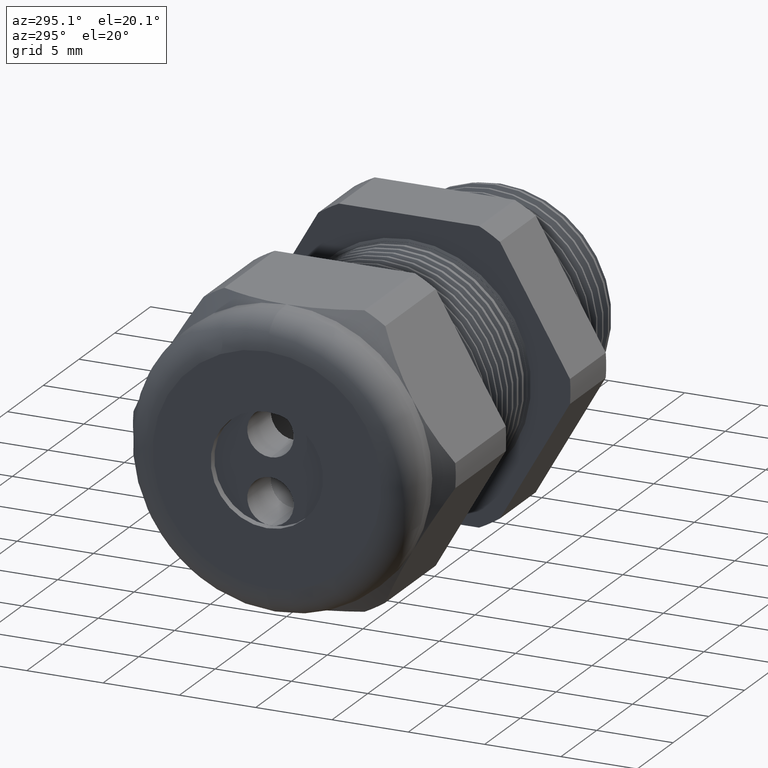
[diagram: clean part render]
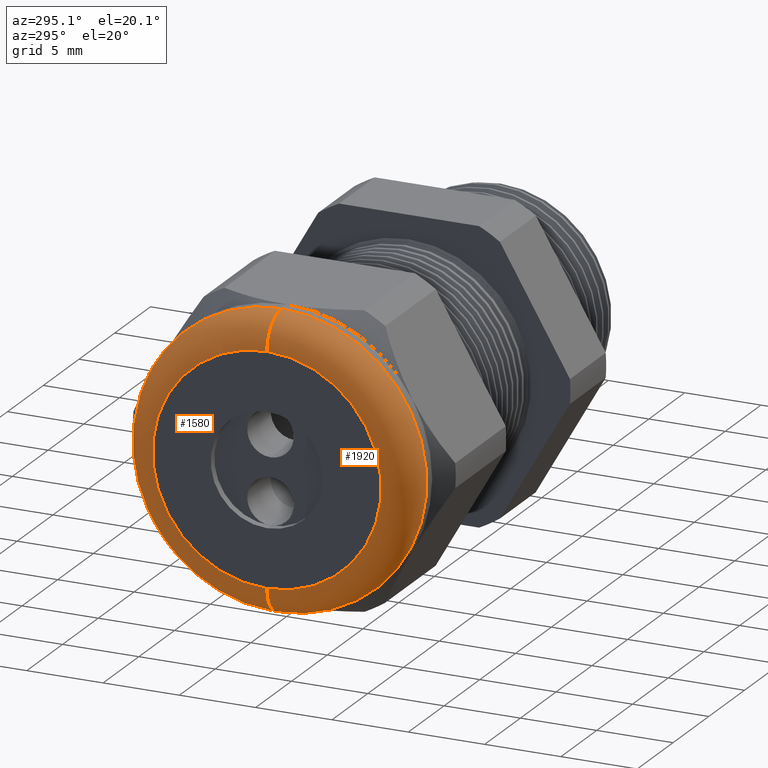
[diagram: same view with one multi-face feature highlighted, each face labeled with its STEP entity id]
A machine part, auxiliary view. The highlighted faces form ONE feature: a constant-radius fillet chain: 2 tangent blend faces with common blend radius 2.032 mm. The faces share edges in the B-rep.
Their STEP definitions:
[1] entity #1920 (Torus):
#965 = DIRECTION ( 'NONE',  ( 0.0000000000000000000, -1.224646799147353500E-016, 1.000000000000000000 ) ) ;
#966 = DIRECTION ( 'NONE',  ( 0.0000000000000000000, 1.000000000000000000, 1.224646799147353200E-016 ) ) ;
#967 = CARTESIAN_POINT ( 'NONE',  ( -1.210000000000000000, 3.612708057484693200E-017, -0.2950000000000001000 ) ) ;
#968 = AXIS2_PLACEMENT_3D ( 'NONE', #967, #966, #965 ) ;
#969 = CIRCLE ( 'NONE', #968, 0.08000000000000000200 ) ;
#1346 = VERTEX_POINT ( 'NONE', #3254 ) ;
#1361 = VERTEX_POINT ( 'NONE', #3281 ) ;
#1564 = EDGE_CURVE ( 'NONE', #1585, #1346, #3658, .T. ) ;
#1584 = VERTEX_POINT ( 'NONE', #3743 ) ;
#1585 = VERTEX_POINT ( 'NONE', #3742 ) ;
#1693 = EDGE_CURVE ( 'NONE', #1361, #1346, #3941, .T. ) ;
#1755 = EDGE_CURVE ( 'NONE', #1585, #1584, #4045, .T. ) ;
#1920 = ADVANCED_FACE ( 'NONE', ( #4330 ), #4329, .T. ) ;
#1921 = EDGE_LOOP ( 'NONE', ( #1922, #1923, #1924, #1925 ) ) ;
#1922 = ORIENTED_EDGE ( 'NONE', *, *, #4943, .F. ) ;
#1923 = ORIENTED_EDGE ( 'NONE', *, *, #1755, .F. ) ;
#1924 = ORIENTED_EDGE ( 'NONE', *, *, #1564, .T. ) ;
#1925 = ORIENTED_EDGE ( 'NONE', *, *, #1693, .F. ) ;
#3254 = CARTESIAN_POINT ( 'NONE',  ( -1.289999999999999800, 0.0000000000000000000, 0.2950000000000001000 ) ) ;
#3281 = CARTESIAN_POINT ( 'NONE',  ( -1.289999999999999800, 4.102566777143634000E-017, -0.2950000000000001000 ) ) ;
#3654 = DIRECTION ( 'NONE',  ( 0.0000000000000000000, 0.0000000000000000000, -1.000000000000000000 ) ) ;
#3655 = DIRECTION ( 'NONE',  ( 0.0000000000000000000, -1.000000000000000000, 0.0000000000000000000 ) ) ;
#3656 = CARTESIAN_POINT ( 'NONE',  ( -1.210000000000000000, 0.0000000000000000000, 0.2950000000000001000 ) ) ;
#3657 = AXIS2_PLACEMENT_3D ( 'NONE', #3656, #3655, #3654 ) ;
#3658 = CIRCLE ( 'NONE', #3657, 0.08000000000000000200 ) ;
#3742 = CARTESIAN_POINT ( 'NONE',  ( -1.210000000000000000, 4.592425496802576100E-017, 0.3750000000000001100 ) ) ;
#3743 = CARTESIAN_POINT ( 'NONE',  ( -1.210000000000000000, 0.0000000000000000000, -0.3750000000000001100 ) ) ;
#3938 = DIRECTION ( 'NONE',  ( 0.0000000000000000000, 0.0000000000000000000, 1.000000000000000000 ) ) ;
#3939 = DIRECTION ( 'NONE',  ( -1.000000000000000000, 0.0000000000000000000, 0.0000000000000000000 ) ) ;
#3940 = AXIS2_PLACEMENT_3D ( 'NONE', #3955, #3939, #3938 ) ;
#3941 = CIRCLE ( 'NONE', #3940, 0.2950000000000001000 ) ;
#3955 = CARTESIAN_POINT ( 'NONE',  ( -1.289999999999999800, 0.0000000000000000000, 0.0000000000000000000 ) ) ;
#4042 = DIRECTION ( 'NONE',  ( 0.0000000000000000000, 0.0000000000000000000, 1.000000000000000000 ) ) ;
#4043 = DIRECTION ( 'NONE',  ( 1.000000000000000000, 0.0000000000000000000, 0.0000000000000000000 ) ) ;
#4044 = AXIS2_PLACEMENT_3D ( 'NONE', #4049, #4043, #4042 ) ;
#4045 = CIRCLE ( 'NONE', #4044, 0.3750000000000001100 ) ;
#4049 = CARTESIAN_POINT ( 'NONE',  ( -1.210000000000000000, 0.0000000000000000000, 0.0000000000000000000 ) ) ;
#4269 = CARTESIAN_POINT ( 'NONE',  ( -1.210000000000000000, 0.0000000000000000000, 0.0000000000000000000 ) ) ;
#4326 = DIRECTION ( 'NONE',  ( 0.0000000000000000000, 0.0000000000000000000, 1.000000000000000000 ) ) ;
#4327 = DIRECTION ( 'NONE',  ( -1.000000000000000000, 0.0000000000000000000, 0.0000000000000000000 ) ) ;
#4328 = AXIS2_PLACEMENT_3D ( 'NONE', #4269, #4327, #4326 ) ;
#4329 = TOROIDAL_SURFACE ( 'NONE', #4328, 0.2950000000000001000, 0.08000000000000000200 ) ;
#4330 = FACE_OUTER_BOUND ( 'NONE', #1921, .T. ) ;
#4943 = EDGE_CURVE ( 'NONE', #1584, #1361, #969, .T. ) ;
[2] entity #1580 (Torus):
#965 = DIRECTION ( 'NONE',  ( 0.0000000000000000000, -1.224646799147353500E-016, 1.000000000000000000 ) ) ;
#966 = DIRECTION ( 'NONE',  ( 0.0000000000000000000, 1.000000000000000000, 1.224646799147353200E-016 ) ) ;
#967 = CARTESIAN_POINT ( 'NONE',  ( -1.210000000000000000, 3.612708057484693200E-017, -0.2950000000000001000 ) ) ;
#968 = AXIS2_PLACEMENT_3D ( 'NONE', #967, #966, #965 ) ;
#969 = CIRCLE ( 'NONE', #968, 0.08000000000000000200 ) ;
#1342 = ORIENTED_EDGE ( 'NONE', *, *, #1564, .F. ) ;
#1346 = VERTEX_POINT ( 'NONE', #3254 ) ;
#1348 = EDGE_CURVE ( 'NONE', #1346, #1361, #3251, .T. ) ;
#1351 = ORIENTED_EDGE ( 'NONE', *, *, #1348, .F. ) ;
#1361 = VERTEX_POINT ( 'NONE', #3281 ) ;
#1564 = EDGE_CURVE ( 'NONE', #1585, #1346, #3658, .T. ) ;
#1580 = ADVANCED_FACE ( 'NONE', ( #3692 ), #3691, .T. ) ;
#1581 = EDGE_LOOP ( 'NONE', ( #1582, #4941, #1351, #1342 ) ) ;
#1582 = ORIENTED_EDGE ( 'NONE', *, *, #1583, .F. ) ;
#1583 = EDGE_CURVE ( 'NONE', #1584, #1585, #3686, .T. ) ;
#1584 = VERTEX_POINT ( 'NONE', #3743 ) ;
#1585 = VERTEX_POINT ( 'NONE', #3742 ) ;
#3243 = DIRECTION ( 'NONE',  ( 0.0000000000000000000, 0.0000000000000000000, 1.000000000000000000 ) ) ;
#3244 = DIRECTION ( 'NONE',  ( -1.000000000000000000, 0.0000000000000000000, 0.0000000000000000000 ) ) ;
#3245 = CARTESIAN_POINT ( 'NONE',  ( -1.289999999999999800, 0.0000000000000000000, 0.0000000000000000000 ) ) ;
#3246 = AXIS2_PLACEMENT_3D ( 'NONE', #3245, #3244, #3243 ) ;
#3251 = CIRCLE ( 'NONE', #3246, 0.2950000000000001000 ) ;
#3254 = CARTESIAN_POINT ( 'NONE',  ( -1.289999999999999800, 0.0000000000000000000, 0.2950000000000001000 ) ) ;
#3281 = CARTESIAN_POINT ( 'NONE',  ( -1.289999999999999800, 4.102566777143634000E-017, -0.2950000000000001000 ) ) ;
#3654 = DIRECTION ( 'NONE',  ( 0.0000000000000000000, 0.0000000000000000000, -1.000000000000000000 ) ) ;
#3655 = DIRECTION ( 'NONE',  ( 0.0000000000000000000, -1.000000000000000000, 0.0000000000000000000 ) ) ;
#3656 = CARTESIAN_POINT ( 'NONE',  ( -1.210000000000000000, 0.0000000000000000000, 0.2950000000000001000 ) ) ;
#3657 = AXIS2_PLACEMENT_3D ( 'NONE', #3656, #3655, #3654 ) ;
#3658 = CIRCLE ( 'NONE', #3657, 0.08000000000000000200 ) ;
#3686 = CIRCLE ( 'NONE', #3747, 0.3750000000000001100 ) ;
#3687 = DIRECTION ( 'NONE',  ( 0.0000000000000000000, 0.0000000000000000000, 1.000000000000000000 ) ) ;
#3688 = DIRECTION ( 'NONE',  ( -1.000000000000000000, 0.0000000000000000000, 0.0000000000000000000 ) ) ;
#3689 = CARTESIAN_POINT ( 'NONE',  ( -1.210000000000000000, 0.0000000000000000000, 0.0000000000000000000 ) ) ;
#3690 = AXIS2_PLACEMENT_3D ( 'NONE', #3689, #3688, #3687 ) ;
#3691 = TOROIDAL_SURFACE ( 'NONE', #3690, 0.2950000000000001000, 0.08000000000000000200 ) ;
#3692 = FACE_OUTER_BOUND ( 'NONE', #1581, .T. ) ;
#3742 = CARTESIAN_POINT ( 'NONE',  ( -1.210000000000000000, 4.592425496802576100E-017, 0.3750000000000001100 ) ) ;
#3743 = CARTESIAN_POINT ( 'NONE',  ( -1.210000000000000000, 0.0000000000000000000, -0.3750000000000001100 ) ) ;
#3744 = DIRECTION ( 'NONE',  ( 0.0000000000000000000, 0.0000000000000000000, 1.000000000000000000 ) ) ;
#3745 = DIRECTION ( 'NONE',  ( 1.000000000000000000, 0.0000000000000000000, 0.0000000000000000000 ) ) ;
#3746 = CARTESIAN_POINT ( 'NONE',  ( -1.210000000000000000, 0.0000000000000000000, 0.0000000000000000000 ) ) ;
#3747 = AXIS2_PLACEMENT_3D ( 'NONE', #3746, #3745, #3744 ) ;
#4941 = ORIENTED_EDGE ( 'NONE', *, *, #4943, .T. ) ;
#4943 = EDGE_CURVE ( 'NONE', #1584, #1361, #969, .T. ) ;